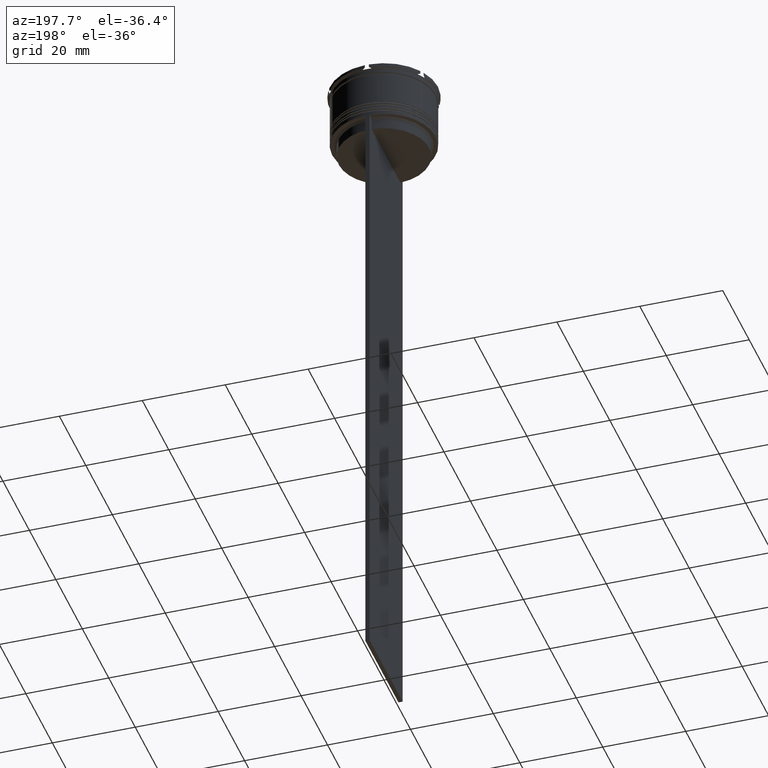
[diagram: clean part render]
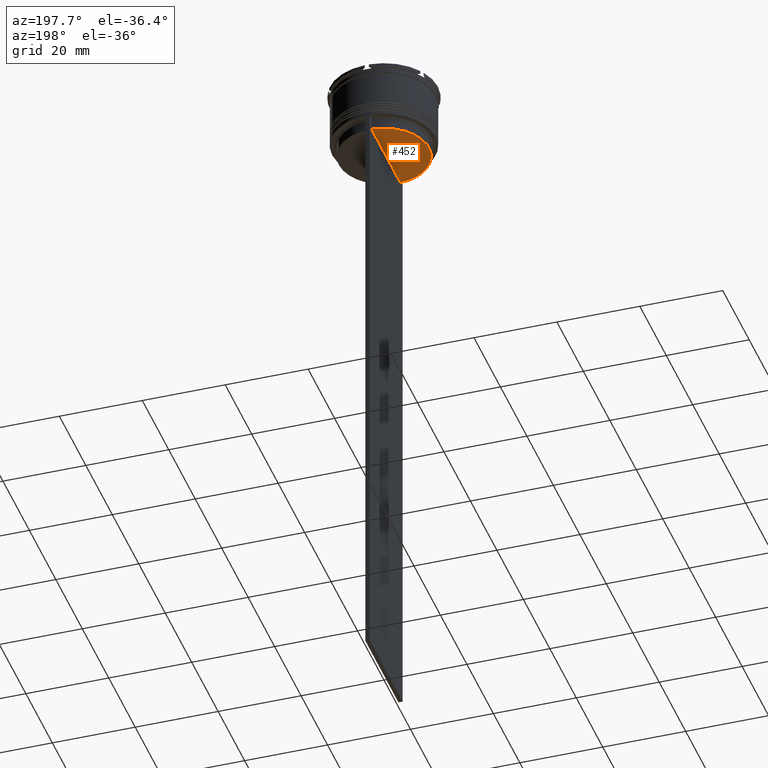
[diagram: same view with one face highlighted and labeled with its STEP entity id]
A machine part, auxiliary view. The second image highlights one B-rep face of the part: STEP entity #452.
In plain terms, the highlighted planar face has unit normal (0, -0, 1).
Its self-contained STEP definition (entity closure, byte-faithful):
#6 = EDGE_CURVE ( 'NONE', #1744, #1839, #1324, .T. ) ;
#104 = LINE ( 'NONE', #992, #2749 ) ;
#147 = DIRECTION ( 'NONE',  ( 1.000000000000000000, 0.000000000000000000, 0.000000000000000000 ) ) ;
#182 = ORIENTED_EDGE ( 'NONE', *, *, #1554, .T. ) ;
#198 = CARTESIAN_POINT ( 'NONE',  ( 0.000000000000000000, 10.90000000000000213, -17.00000000000000000 ) ) ;
#452 = ADVANCED_FACE ( 'NONE', ( #2003 ), #1509, .F. ) ;
#589 = AXIS2_PLACEMENT_3D ( 'NONE', #2193, #2166, #147 ) ;
#651 = CARTESIAN_POINT ( 'NONE',  ( -0.5000000000000000000, 10.88852607105296144, -17.00000000000000000 ) ) ;
#742 = CARTESIAN_POINT ( 'NONE',  ( -0.5000000000000000000, -10.88852607105296144, -17.00000000000000000 ) ) ;
#992 = CARTESIAN_POINT ( 'NONE',  ( -0.5000000000000000000, 10.90000000000000213, -17.00000000000000000 ) ) ;
#1241 = AXIS2_PLACEMENT_3D ( 'NONE', #198, #2205, #2020 ) ;
#1324 = CIRCLE ( 'NONE', #589, 10.90000000000000213 ) ;
#1372 = ORIENTED_EDGE ( 'NONE', *, *, #6, .F. ) ;
#1385 = DIRECTION ( 'NONE',  ( 0.000000000000000000, -1.000000000000000000, 0.000000000000000000 ) ) ;
#1509 = PLANE ( 'NONE',  #1241 ) ;
#1554 = EDGE_CURVE ( 'NONE', #1744, #1839, #104, .T. ) ;
#1744 = VERTEX_POINT ( 'NONE', #651 ) ;
#1839 = VERTEX_POINT ( 'NONE', #742 ) ;
#2003 = FACE_OUTER_BOUND ( 'NONE', #2420, .T. ) ;
#2020 = DIRECTION ( 'NONE',  ( 1.000000000000000000, 0.000000000000000000, 0.000000000000000000 ) ) ;
#2166 = DIRECTION ( 'NONE',  ( -0.000000000000000000, -0.000000000000000000, 1.000000000000000000 ) ) ;
#2193 = CARTESIAN_POINT ( 'NONE',  ( 0.000000000000000000, 0.000000000000000000, -17.00000000000000000 ) ) ;
#2205 = DIRECTION ( 'NONE',  ( 0.000000000000000000, -0.000000000000000000, 1.000000000000000000 ) ) ;
#2420 = EDGE_LOOP ( 'NONE', ( #1372, #182 ) ) ;
#2749 = VECTOR ( 'NONE', #1385, 1000.000000000000000 ) ;